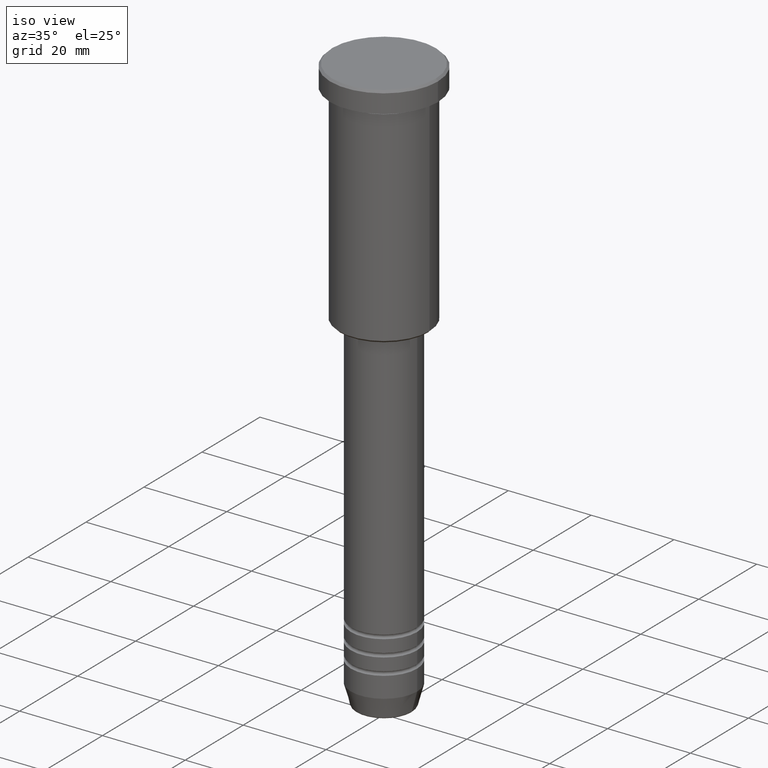
[diagram: clean part render]
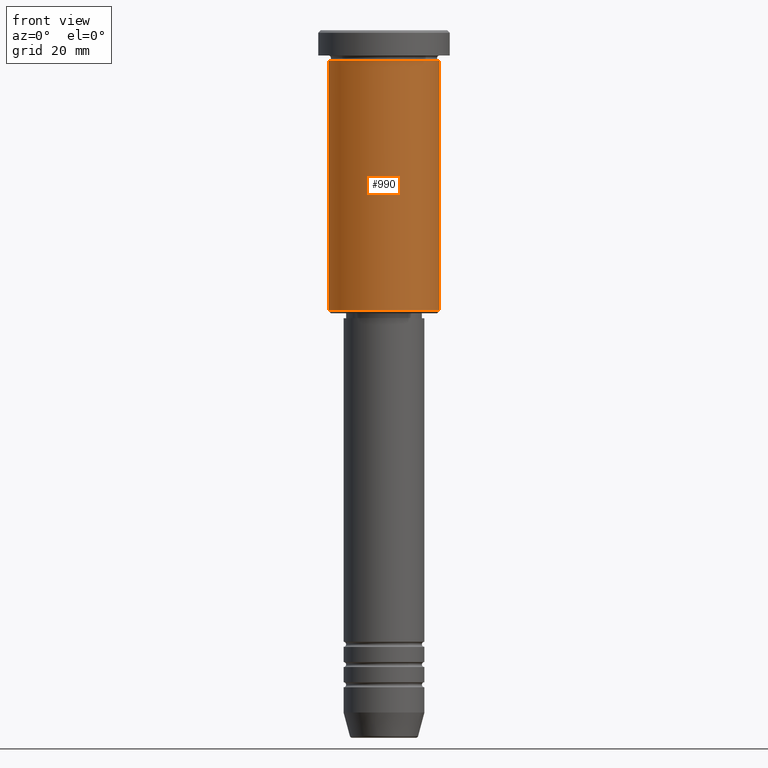
[diagram: tour spotlight — one face highlighted and labeled with its STEP entity id]
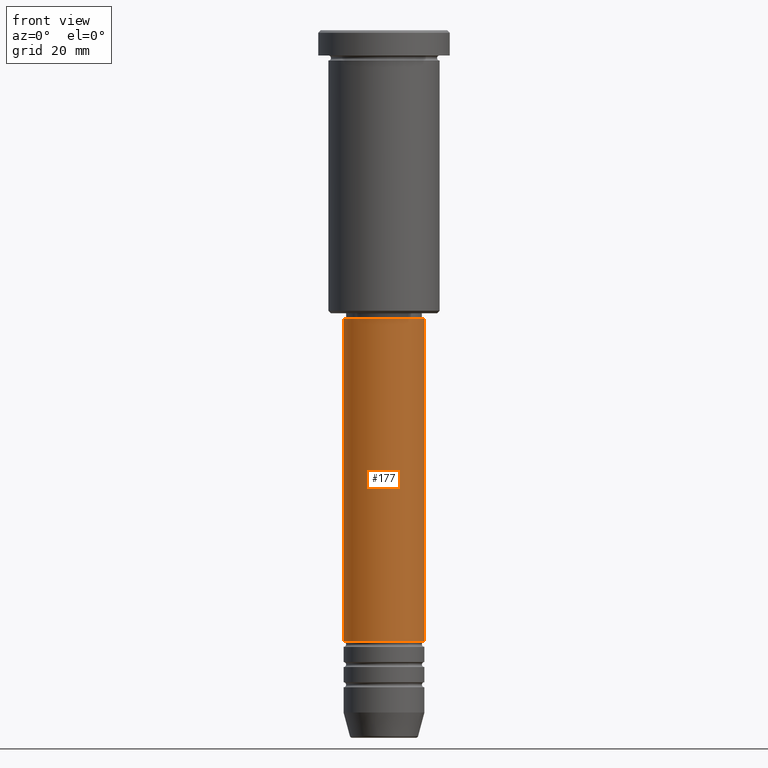
[diagram: tour spotlight — one face highlighted and labeled with its STEP entity id]
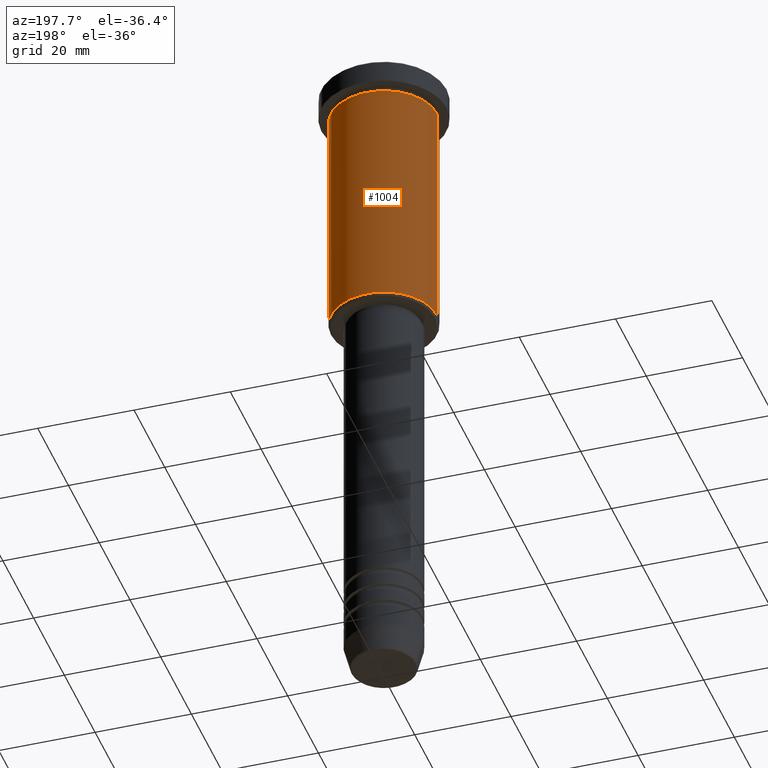
[diagram: tour spotlight — one face highlighted and labeled with its STEP entity id]
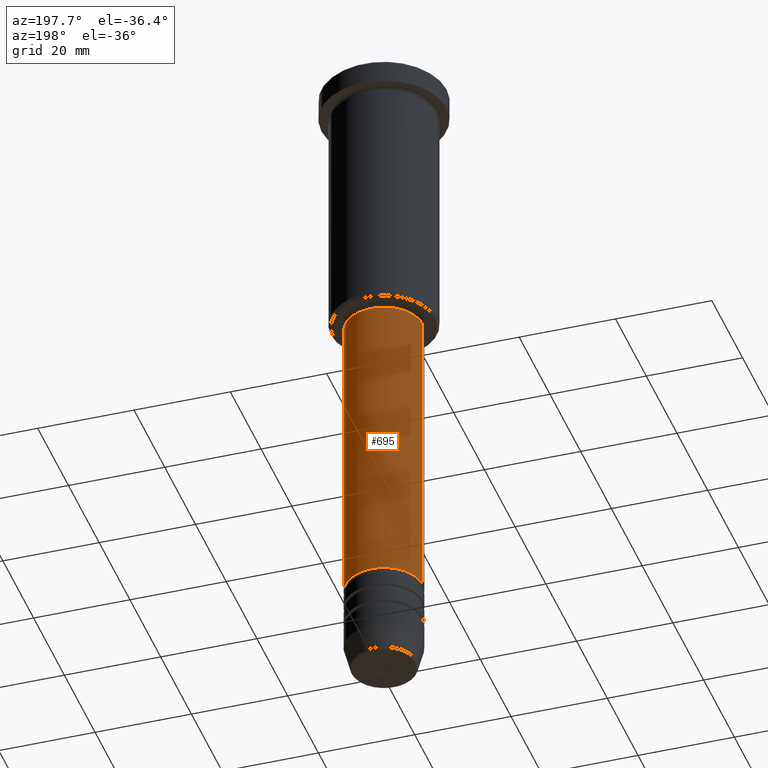
[diagram: tour spotlight — one face highlighted and labeled with its STEP entity id]
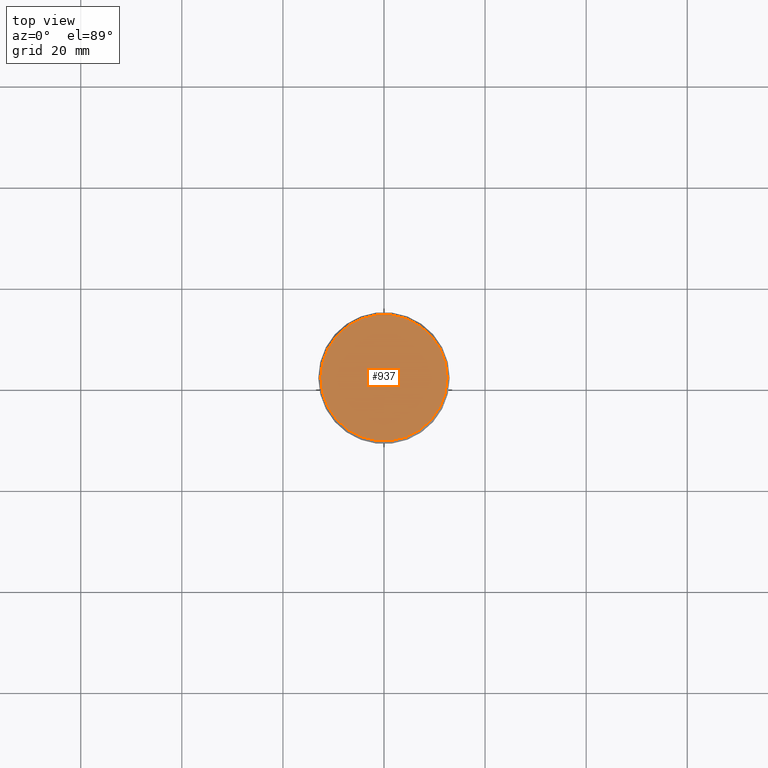
[diagram: tour spotlight — one face highlighted and labeled with its STEP entity id]
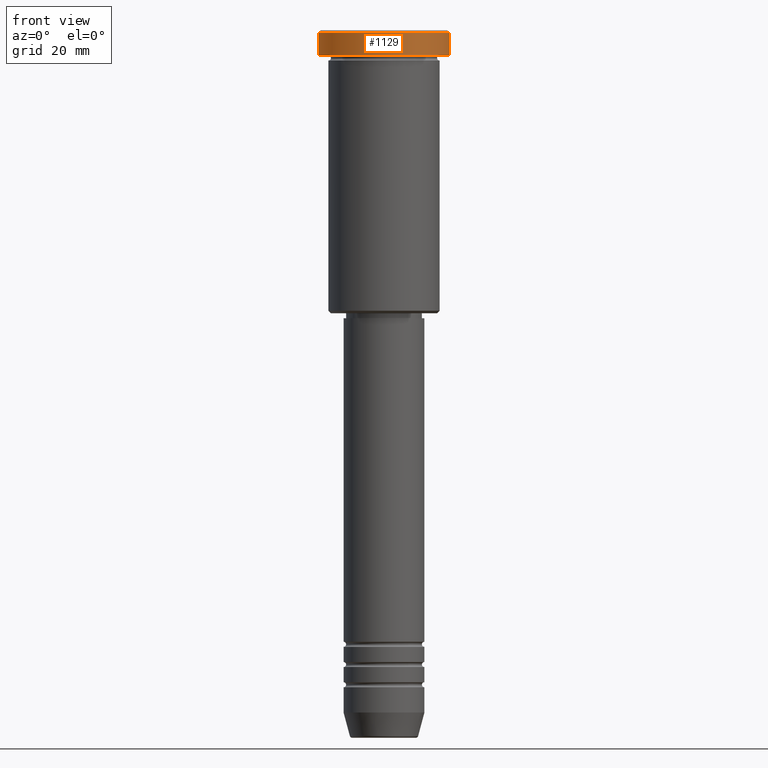
[diagram: tour spotlight — one face highlighted and labeled with its STEP entity id]
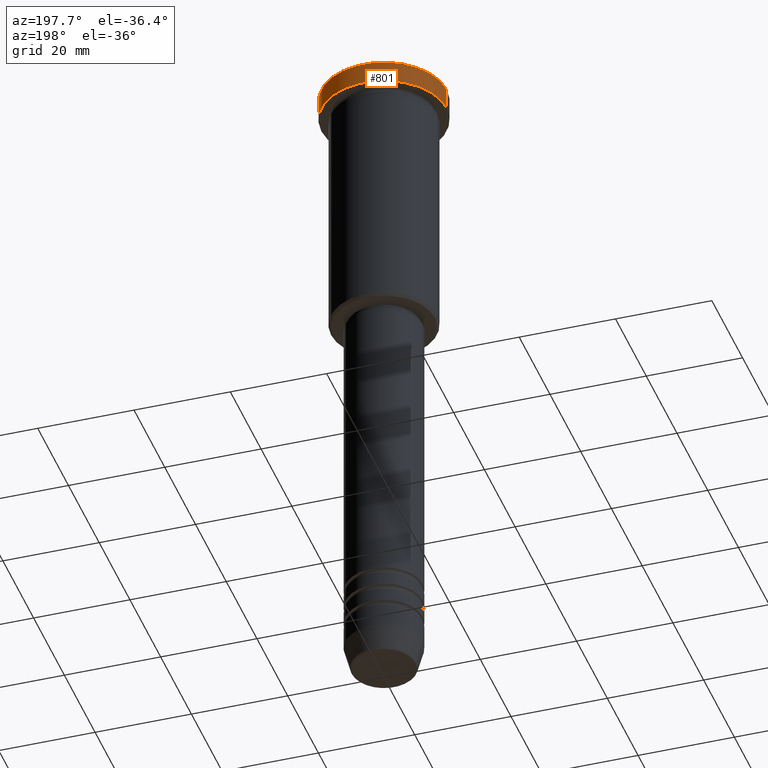
[diagram: tour spotlight — one face highlighted and labeled with its STEP entity id]
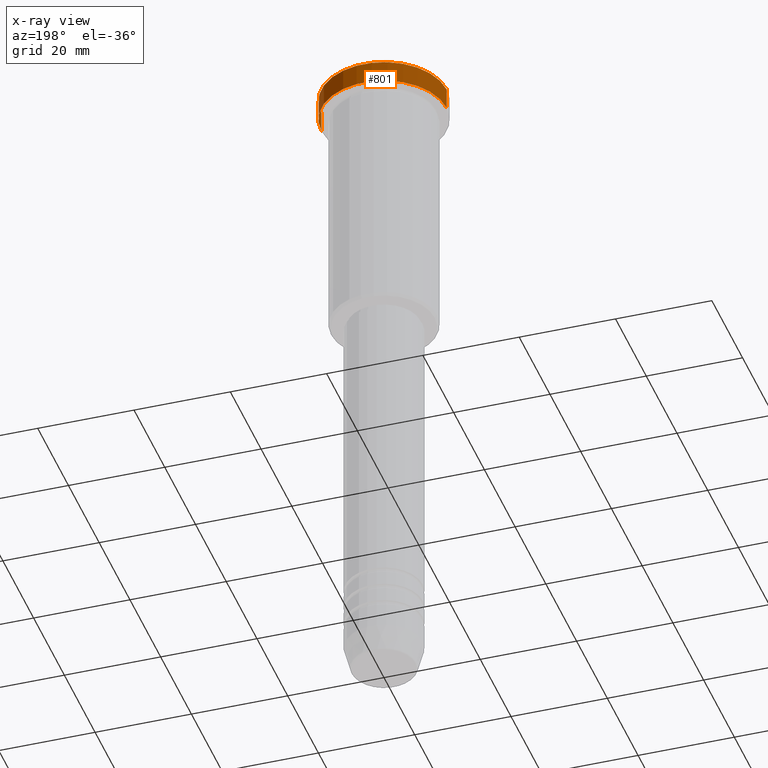
[diagram: x-ray of the same camera — body ghosted, this tour face saturated]
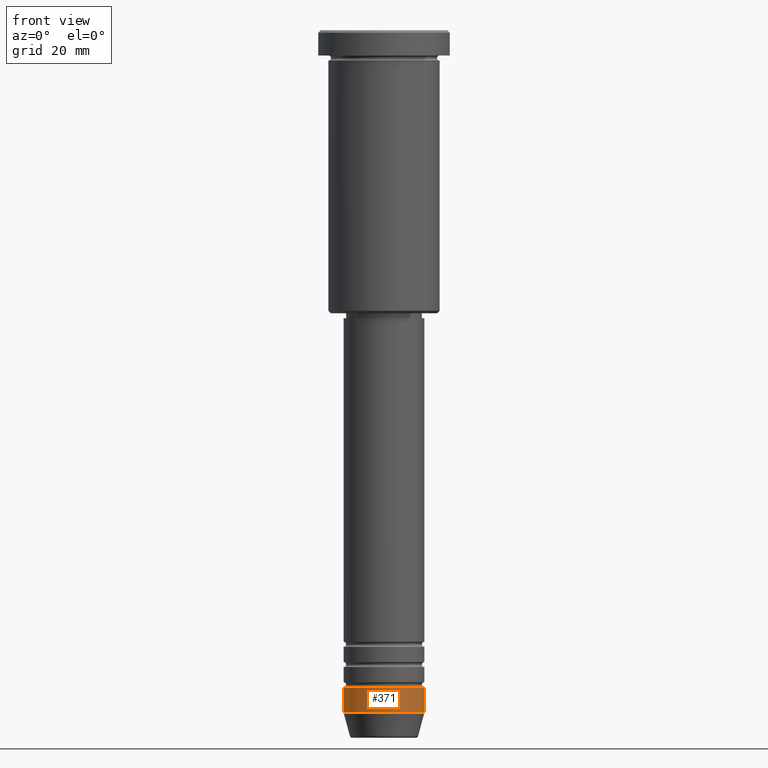
[diagram: tour spotlight — one face highlighted and labeled with its STEP entity id]
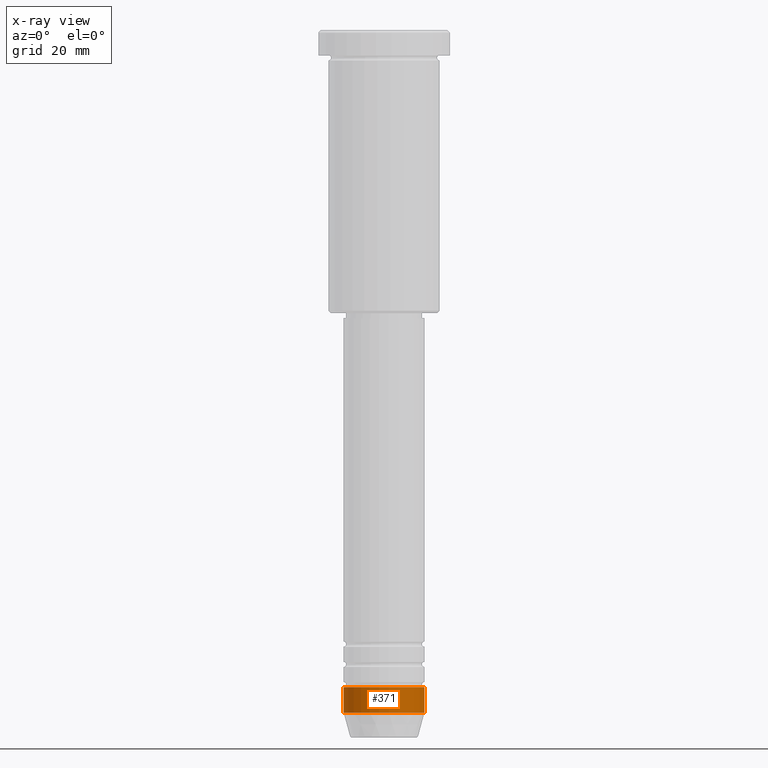
[diagram: x-ray of the same camera — body ghosted, this tour face saturated]
A machine part: a face-by-face anatomy tour. The part has 43 B-rep faces; the first image is the clean iso view, then the 8 largest visible faces are spotlighted one at a time (largest first), each with its STEP entity span.

Face 1 — front view, entity #990. In plain terms, the highlighted cylindrical surface (partial cylindrical patch) has radius 11 mm, axis along (-0, -0, 1).
Definition (entity closure, byte-faithful):
#57 = DIRECTION ( 'NONE',  ( -1.000000000000000000, 0.000000000000000000, 0.000000000000000000 ) ) ;
#84 = DIRECTION ( 'NONE',  ( 1.000000000000000000, 0.000000000000000000, 0.000000000000000000 ) ) ;
#114 = AXIS2_PLACEMENT_3D ( 'NONE', #369, #794, #84 ) ;
#122 = CARTESIAN_POINT ( 'NONE',  ( 11.00000000000000000, 0.000000000000000000, 0.000000000000000000 ) ) ;
#145 = ORIENTED_EDGE ( 'NONE', *, *, #610, .F. ) ;
#203 = CARTESIAN_POINT ( 'NONE',  ( 11.00000000000000000, 0.000000000000000000, -55.50000000000000711 ) ) ;
#283 = DIRECTION ( 'NONE',  ( 1.000000000000000000, 0.000000000000000000, 0.000000000000000000 ) ) ;
#284 = CARTESIAN_POINT ( 'NONE',  ( -11.00000000000000000, 1.347111479062088405E-15, -55.50000000000000711 ) ) ;
#309 = LINE ( 'NONE', #122, #1015 ) ;
#322 = VERTEX_POINT ( 'NONE', #424 ) ;
#338 = CARTESIAN_POINT ( 'NONE',  ( 0.000000000000000000, 0.000000000000000000, -55.50000000000000711 ) ) ;
#354 = EDGE_LOOP ( 'NONE', ( #145, #825, #763, #1108 ) ) ;
#369 = CARTESIAN_POINT ( 'NONE',  ( 0.000000000000000000, 0.000000000000000000, 0.000000000000000000 ) ) ;
#417 = VERTEX_POINT ( 'NONE', #832 ) ;
#424 = CARTESIAN_POINT ( 'NONE',  ( 11.00000000000000000, 0.000000000000000000, -5.999999999999999112 ) ) ;
#445 = DIRECTION ( 'NONE',  ( -0.000000000000000000, -0.000000000000000000, 1.000000000000000000 ) ) ;
#454 = EDGE_CURVE ( 'NONE', #1148, #322, #309, .T. ) ;
#558 = AXIS2_PLACEMENT_3D ( 'NONE', #338, #1070, #57 ) ;
#580 = DIRECTION ( 'NONE',  ( -0.000000000000000000, -0.000000000000000000, 1.000000000000000000 ) ) ;
#610 = EDGE_CURVE ( 'NONE', #1021, #417, #918, .T. ) ;
#627 = EDGE_CURVE ( 'NONE', #417, #322, #836, .T. ) ;
#638 = CARTESIAN_POINT ( 'NONE',  ( -11.00000000000000000, 1.347111479062088405E-15, 0.000000000000000000 ) ) ;
#659 = VECTOR ( 'NONE', #445, 1000.000000000000000 ) ;
#687 = DIRECTION ( 'NONE',  ( -0.000000000000000000, -0.000000000000000000, 1.000000000000000000 ) ) ;
#720 = CYLINDRICAL_SURFACE ( 'NONE', #114, 11.00000000000000000 ) ;
#763 = ORIENTED_EDGE ( 'NONE', *, *, #454, .T. ) ;
#784 = EDGE_CURVE ( 'NONE', #1021, #1148, #1063, .T. ) ;
#794 = DIRECTION ( 'NONE',  ( -0.000000000000000000, -0.000000000000000000, 1.000000000000000000 ) ) ;
#817 = CARTESIAN_POINT ( 'NONE',  ( 0.000000000000000000, 0.000000000000000000, -5.999999999999999112 ) ) ;
#825 = ORIENTED_EDGE ( 'NONE', *, *, #784, .T. ) ;
#832 = CARTESIAN_POINT ( 'NONE',  ( -11.00000000000000000, 1.347111479062088405E-15, -5.999999999999999112 ) ) ;
#836 = CIRCLE ( 'NONE', #1031, 11.00000000000000000 ) ;
#918 = LINE ( 'NONE', #638, #659 ) ;
#984 = FACE_OUTER_BOUND ( 'NONE', #354, .T. ) ;
#990 = ADVANCED_FACE ( 'NONE', ( #984 ), #720, .T. ) ;
#1015 = VECTOR ( 'NONE', #687, 1000.000000000000000 ) ;
#1021 = VERTEX_POINT ( 'NONE', #284 ) ;
#1031 = AXIS2_PLACEMENT_3D ( 'NONE', #817, #580, #283 ) ;
#1063 = CIRCLE ( 'NONE', #558, 11.00000000000000000 ) ;
#1070 = DIRECTION ( 'NONE',  ( -0.000000000000000000, -0.000000000000000000, 1.000000000000000000 ) ) ;
#1108 = ORIENTED_EDGE ( 'NONE', *, *, #627, .F. ) ;
#1148 = VERTEX_POINT ( 'NONE', #203 ) ;

Face 2 — front view, entity #177. In plain terms, the highlighted cylindrical surface (partial cylindrical patch) has radius 8 mm, axis along (-0, -0, 1).
Definition (entity closure, byte-faithful):
#36 = EDGE_CURVE ( 'NONE', #254, #66, #459, .T. ) ;
#56 = AXIS2_PLACEMENT_3D ( 'NONE', #422, #938, #390 ) ;
#66 = VERTEX_POINT ( 'NONE', #1183 ) ;
#110 = ORIENTED_EDGE ( 'NONE', *, *, #711, .T. ) ;
#142 = DIRECTION ( 'NONE',  ( -0.000000000000000000, -0.000000000000000000, 1.000000000000000000 ) ) ;
#162 = VERTEX_POINT ( 'NONE', #767 ) ;
#177 = ADVANCED_FACE ( 'NONE', ( #421 ), #520, .T. ) ;
#186 = DIRECTION ( 'NONE',  ( -0.000000000000000000, -0.000000000000000000, 1.000000000000000000 ) ) ;
#200 = CARTESIAN_POINT ( 'NONE',  ( 8.000000000000000000, 0.000000000000000000, 0.000000000000000000 ) ) ;
#204 = ORIENTED_EDGE ( 'NONE', *, *, #490, .T. ) ;
#207 = ORIENTED_EDGE ( 'NONE', *, *, #887, .F. ) ;
#233 = CARTESIAN_POINT ( 'NONE',  ( 8.000000000000000000, 0.000000000000000000, -57.00000000000002842 ) ) ;
#254 = VERTEX_POINT ( 'NONE', #831 ) ;
#390 = DIRECTION ( 'NONE',  ( 1.000000000000000000, 0.000000000000000000, 0.000000000000000000 ) ) ;
#421 = FACE_OUTER_BOUND ( 'NONE', #806, .T. ) ;
#422 = CARTESIAN_POINT ( 'NONE',  ( 0.000000000000000000, 0.000000000000000000, -121.0000000000000000 ) ) ;
#431 = DIRECTION ( 'NONE',  ( -0.000000000000000000, -0.000000000000000000, 1.000000000000000000 ) ) ;
#435 = VERTEX_POINT ( 'NONE', #233 ) ;
#459 = LINE ( 'NONE', #999, #560 ) ;
#490 = EDGE_CURVE ( 'NONE', #254, #162, #1085, .T. ) ;
#493 = AXIS2_PLACEMENT_3D ( 'NONE', #707, #607, #1061 ) ;
#520 = CYLINDRICAL_SURFACE ( 'NONE', #493, 8.000000000000000000 ) ;
#556 = ORIENTED_EDGE ( 'NONE', *, *, #36, .F. ) ;
#560 = VECTOR ( 'NONE', #186, 1000.000000000000000 ) ;
#607 = DIRECTION ( 'NONE',  ( -0.000000000000000000, -0.000000000000000000, 1.000000000000000000 ) ) ;
#626 = CARTESIAN_POINT ( 'NONE',  ( 0.000000000000000000, 0.000000000000000000, -57.00000000000002842 ) ) ;
#707 = CARTESIAN_POINT ( 'NONE',  ( 0.000000000000000000, 0.000000000000000000, 0.000000000000000000 ) ) ;
#711 = EDGE_CURVE ( 'NONE', #162, #435, #739, .T. ) ;
#739 = LINE ( 'NONE', #200, #1156 ) ;
#767 = CARTESIAN_POINT ( 'NONE',  ( 8.000000000000000000, 0.000000000000000000, -121.0000000000000000 ) ) ;
#798 = DIRECTION ( 'NONE',  ( 1.000000000000000000, 0.000000000000000000, 0.000000000000000000 ) ) ;
#806 = EDGE_LOOP ( 'NONE', ( #556, #204, #110, #207 ) ) ;
#831 = CARTESIAN_POINT ( 'NONE',  ( -8.000000000000000000, 9.797174393178825657E-16, -121.0000000000000000 ) ) ;
#887 = EDGE_CURVE ( 'NONE', #66, #435, #1123, .T. ) ;
#938 = DIRECTION ( 'NONE',  ( -0.000000000000000000, -0.000000000000000000, 1.000000000000000000 ) ) ;
#999 = CARTESIAN_POINT ( 'NONE',  ( -8.000000000000000000, 9.797174393178825657E-16, 0.000000000000000000 ) ) ;
#1013 = AXIS2_PLACEMENT_3D ( 'NONE', #626, #431, #798 ) ;
#1061 = DIRECTION ( 'NONE',  ( 1.000000000000000000, 0.000000000000000000, 0.000000000000000000 ) ) ;
#1085 = CIRCLE ( 'NONE', #56, 8.000000000000000000 ) ;
#1123 = CIRCLE ( 'NONE', #1013, 8.000000000000000000 ) ;
#1156 = VECTOR ( 'NONE', #142, 1000.000000000000000 ) ;
#1183 = CARTESIAN_POINT ( 'NONE',  ( -8.000000000000000000, 9.797174393178825657E-16, -57.00000000000002842 ) ) ;

Face 3 — auxiliary view, entity #1004. In plain terms, the highlighted cylindrical surface (partial cylindrical patch) has radius 11 mm, axis along (-0, -0, 1).
Definition (entity closure, byte-faithful):
#59 = DIRECTION ( 'NONE',  ( -1.000000000000000000, 0.000000000000000000, 0.000000000000000000 ) ) ;
#60 = ORIENTED_EDGE ( 'NONE', *, *, #610, .T. ) ;
#119 = EDGE_LOOP ( 'NONE', ( #462, #60, #608, #597 ) ) ;
#122 = CARTESIAN_POINT ( 'NONE',  ( 11.00000000000000000, 0.000000000000000000, 0.000000000000000000 ) ) ;
#125 = DIRECTION ( 'NONE',  ( 1.000000000000000000, 0.000000000000000000, 0.000000000000000000 ) ) ;
#179 = EDGE_CURVE ( 'NONE', #1148, #1021, #1158, .T. ) ;
#203 = CARTESIAN_POINT ( 'NONE',  ( 11.00000000000000000, 0.000000000000000000, -55.50000000000000711 ) ) ;
#220 = AXIS2_PLACEMENT_3D ( 'NONE', #750, #1028, #125 ) ;
#284 = CARTESIAN_POINT ( 'NONE',  ( -11.00000000000000000, 1.347111479062088405E-15, -55.50000000000000711 ) ) ;
#290 = AXIS2_PLACEMENT_3D ( 'NONE', #722, #919, #1095 ) ;
#309 = LINE ( 'NONE', #122, #1015 ) ;
#322 = VERTEX_POINT ( 'NONE', #424 ) ;
#417 = VERTEX_POINT ( 'NONE', #832 ) ;
#424 = CARTESIAN_POINT ( 'NONE',  ( 11.00000000000000000, 0.000000000000000000, -5.999999999999999112 ) ) ;
#436 = FACE_OUTER_BOUND ( 'NONE', #119, .T. ) ;
#445 = DIRECTION ( 'NONE',  ( -0.000000000000000000, -0.000000000000000000, 1.000000000000000000 ) ) ;
#454 = EDGE_CURVE ( 'NONE', #1148, #322, #309, .T. ) ;
#462 = ORIENTED_EDGE ( 'NONE', *, *, #179, .T. ) ;
#505 = EDGE_CURVE ( 'NONE', #322, #417, #732, .T. ) ;
#597 = ORIENTED_EDGE ( 'NONE', *, *, #454, .F. ) ;
#608 = ORIENTED_EDGE ( 'NONE', *, *, #505, .F. ) ;
#610 = EDGE_CURVE ( 'NONE', #1021, #417, #918, .T. ) ;
#630 = CYLINDRICAL_SURFACE ( 'NONE', #290, 11.00000000000000000 ) ;
#638 = CARTESIAN_POINT ( 'NONE',  ( -11.00000000000000000, 1.347111479062088405E-15, 0.000000000000000000 ) ) ;
#657 = AXIS2_PLACEMENT_3D ( 'NONE', #868, #888, #59 ) ;
#659 = VECTOR ( 'NONE', #445, 1000.000000000000000 ) ;
#687 = DIRECTION ( 'NONE',  ( -0.000000000000000000, -0.000000000000000000, 1.000000000000000000 ) ) ;
#722 = CARTESIAN_POINT ( 'NONE',  ( 0.000000000000000000, 0.000000000000000000, 0.000000000000000000 ) ) ;
#732 = CIRCLE ( 'NONE', #220, 11.00000000000000000 ) ;
#750 = CARTESIAN_POINT ( 'NONE',  ( 0.000000000000000000, 0.000000000000000000, -5.999999999999999112 ) ) ;
#832 = CARTESIAN_POINT ( 'NONE',  ( -11.00000000000000000, 1.347111479062088405E-15, -5.999999999999999112 ) ) ;
#868 = CARTESIAN_POINT ( 'NONE',  ( 0.000000000000000000, 0.000000000000000000, -55.50000000000000711 ) ) ;
#888 = DIRECTION ( 'NONE',  ( -0.000000000000000000, -0.000000000000000000, 1.000000000000000000 ) ) ;
#918 = LINE ( 'NONE', #638, #659 ) ;
#919 = DIRECTION ( 'NONE',  ( -0.000000000000000000, -0.000000000000000000, 1.000000000000000000 ) ) ;
#1004 = ADVANCED_FACE ( 'NONE', ( #436 ), #630, .T. ) ;
#1015 = VECTOR ( 'NONE', #687, 1000.000000000000000 ) ;
#1021 = VERTEX_POINT ( 'NONE', #284 ) ;
#1028 = DIRECTION ( 'NONE',  ( -0.000000000000000000, -0.000000000000000000, 1.000000000000000000 ) ) ;
#1095 = DIRECTION ( 'NONE',  ( 1.000000000000000000, 0.000000000000000000, 0.000000000000000000 ) ) ;
#1148 = VERTEX_POINT ( 'NONE', #203 ) ;
#1158 = CIRCLE ( 'NONE', #657, 11.00000000000000000 ) ;

Face 4 — auxiliary view, entity #695. In plain terms, the highlighted cylindrical surface (partial cylindrical patch) has radius 8 mm, axis along (-0, -0, 1).
Definition (entity closure, byte-faithful):
#6 = DIRECTION ( 'NONE',  ( 1.000000000000000000, 0.000000000000000000, 0.000000000000000000 ) ) ;
#20 = CARTESIAN_POINT ( 'NONE',  ( 0.000000000000000000, 0.000000000000000000, -57.00000000000002842 ) ) ;
#36 = EDGE_CURVE ( 'NONE', #254, #66, #459, .T. ) ;
#66 = VERTEX_POINT ( 'NONE', #1183 ) ;
#88 = CARTESIAN_POINT ( 'NONE',  ( 0.000000000000000000, 0.000000000000000000, -121.0000000000000000 ) ) ;
#102 = EDGE_CURVE ( 'NONE', #435, #66, #218, .T. ) ;
#142 = DIRECTION ( 'NONE',  ( -0.000000000000000000, -0.000000000000000000, 1.000000000000000000 ) ) ;
#162 = VERTEX_POINT ( 'NONE', #767 ) ;
#186 = DIRECTION ( 'NONE',  ( -0.000000000000000000, -0.000000000000000000, 1.000000000000000000 ) ) ;
#188 = FACE_OUTER_BOUND ( 'NONE', #975, .T. ) ;
#200 = CARTESIAN_POINT ( 'NONE',  ( 8.000000000000000000, 0.000000000000000000, 0.000000000000000000 ) ) ;
#218 = CIRCLE ( 'NONE', #992, 8.000000000000000000 ) ;
#233 = CARTESIAN_POINT ( 'NONE',  ( 8.000000000000000000, 0.000000000000000000, -57.00000000000002842 ) ) ;
#242 = ORIENTED_EDGE ( 'NONE', *, *, #711, .F. ) ;
#254 = VERTEX_POINT ( 'NONE', #831 ) ;
#297 = CYLINDRICAL_SURFACE ( 'NONE', #471, 8.000000000000000000 ) ;
#386 = EDGE_CURVE ( 'NONE', #162, #254, #699, .T. ) ;
#416 = AXIS2_PLACEMENT_3D ( 'NONE', #88, #1000, #932 ) ;
#435 = VERTEX_POINT ( 'NONE', #233 ) ;
#459 = LINE ( 'NONE', #999, #560 ) ;
#471 = AXIS2_PLACEMENT_3D ( 'NONE', #559, #822, #6 ) ;
#533 = ORIENTED_EDGE ( 'NONE', *, *, #36, .T. ) ;
#559 = CARTESIAN_POINT ( 'NONE',  ( 0.000000000000000000, 0.000000000000000000, 0.000000000000000000 ) ) ;
#560 = VECTOR ( 'NONE', #186, 1000.000000000000000 ) ;
#695 = ADVANCED_FACE ( 'NONE', ( #188 ), #297, .T. ) ;
#699 = CIRCLE ( 'NONE', #416, 8.000000000000000000 ) ;
#711 = EDGE_CURVE ( 'NONE', #162, #435, #739, .T. ) ;
#739 = LINE ( 'NONE', #200, #1156 ) ;
#767 = CARTESIAN_POINT ( 'NONE',  ( 8.000000000000000000, 0.000000000000000000, -121.0000000000000000 ) ) ;
#774 = ORIENTED_EDGE ( 'NONE', *, *, #102, .F. ) ;
#822 = DIRECTION ( 'NONE',  ( -0.000000000000000000, -0.000000000000000000, 1.000000000000000000 ) ) ;
#829 = DIRECTION ( 'NONE',  ( 1.000000000000000000, 0.000000000000000000, 0.000000000000000000 ) ) ;
#831 = CARTESIAN_POINT ( 'NONE',  ( -8.000000000000000000, 9.797174393178825657E-16, -121.0000000000000000 ) ) ;
#932 = DIRECTION ( 'NONE',  ( 1.000000000000000000, 0.000000000000000000, 0.000000000000000000 ) ) ;
#954 = DIRECTION ( 'NONE',  ( -0.000000000000000000, -0.000000000000000000, 1.000000000000000000 ) ) ;
#975 = EDGE_LOOP ( 'NONE', ( #1082, #533, #774, #242 ) ) ;
#992 = AXIS2_PLACEMENT_3D ( 'NONE', #20, #954, #829 ) ;
#999 = CARTESIAN_POINT ( 'NONE',  ( -8.000000000000000000, 9.797174393178825657E-16, 0.000000000000000000 ) ) ;
#1000 = DIRECTION ( 'NONE',  ( -0.000000000000000000, -0.000000000000000000, 1.000000000000000000 ) ) ;
#1082 = ORIENTED_EDGE ( 'NONE', *, *, #386, .T. ) ;
#1156 = VECTOR ( 'NONE', #142, 1000.000000000000000 ) ;
#1183 = CARTESIAN_POINT ( 'NONE',  ( -8.000000000000000000, 9.797174393178825657E-16, -57.00000000000002842 ) ) ;

Face 5 — top view, entity #937. In plain terms, the highlighted planar face has unit normal (0, -0, 1).
Definition (entity closure, byte-faithful):
#68 = AXIS2_PLACEMENT_3D ( 'NONE', #761, #593, #693 ) ;
#155 = CARTESIAN_POINT ( 'NONE',  ( 0.000000000000000000, 0.000000000000000000, 0.000000000000000000 ) ) ;
#289 = AXIS2_PLACEMENT_3D ( 'NONE', #155, #519, #569 ) ;
#302 = DIRECTION ( 'NONE',  ( 0.000000000000000000, -0.000000000000000000, 1.000000000000000000 ) ) ;
#312 = AXIS2_PLACEMENT_3D ( 'NONE', #1113, #302, #844 ) ;
#326 = FACE_OUTER_BOUND ( 'NONE', #1097, .T. ) ;
#373 = CARTESIAN_POINT ( 'NONE',  ( 12.50000000000001066, 1.561424668912876097E-15, 0.000000000000000000 ) ) ;
#381 = VERTEX_POINT ( 'NONE', #873 ) ;
#496 = CIRCLE ( 'NONE', #289, 12.50000000000001066 ) ;
#519 = DIRECTION ( 'NONE',  ( -0.000000000000000000, -0.000000000000000000, 1.000000000000000000 ) ) ;
#569 = DIRECTION ( 'NONE',  ( 1.000000000000000000, 0.000000000000000000, 0.000000000000000000 ) ) ;
#593 = DIRECTION ( 'NONE',  ( -0.000000000000000000, -0.000000000000000000, 1.000000000000000000 ) ) ;
#601 = CIRCLE ( 'NONE', #68, 12.50000000000001066 ) ;
#613 = EDGE_CURVE ( 'NONE', #381, #703, #496, .T. ) ;
#693 = DIRECTION ( 'NONE',  ( 1.000000000000000000, 0.000000000000000000, 0.000000000000000000 ) ) ;
#703 = VERTEX_POINT ( 'NONE', #373 ) ;
#748 = PLANE ( 'NONE',  #312 ) ;
#761 = CARTESIAN_POINT ( 'NONE',  ( 0.000000000000000000, 0.000000000000000000, 0.000000000000000000 ) ) ;
#826 = EDGE_CURVE ( 'NONE', #703, #381, #601, .T. ) ;
#844 = DIRECTION ( 'NONE',  ( 1.000000000000000000, 0.000000000000000000, 0.000000000000000000 ) ) ;
#873 = CARTESIAN_POINT ( 'NONE',  ( -12.50000000000001066, 0.000000000000000000, 0.000000000000000000 ) ) ;
#891 = ORIENTED_EDGE ( 'NONE', *, *, #613, .T. ) ;
#917 = ORIENTED_EDGE ( 'NONE', *, *, #826, .T. ) ;
#937 = ADVANCED_FACE ( 'NONE', ( #326 ), #748, .T. ) ;
#1097 = EDGE_LOOP ( 'NONE', ( #891, #917 ) ) ;
#1113 = CARTESIAN_POINT ( 'NONE',  ( 0.000000000000000000, 0.000000000000000000, 0.000000000000000000 ) ) ;

Face 6 — front view, entity #1129. In plain terms, the highlighted cylindrical surface (partial cylindrical patch) has radius 13 mm, axis along (-0, -0, 1).
Definition (entity closure, byte-faithful):
#2 = VERTEX_POINT ( 'NONE', #649 ) ;
#92 = DIRECTION ( 'NONE',  ( 1.000000000000000000, 0.000000000000000000, 0.000000000000000000 ) ) ;
#109 = DIRECTION ( 'NONE',  ( 1.000000000000000000, 0.000000000000000000, 0.000000000000000000 ) ) ;
#128 = DIRECTION ( 'NONE',  ( 1.000000000000000000, 0.000000000000000000, 0.000000000000000000 ) ) ;
#172 = VECTOR ( 'NONE', #265, 1000.000000000000000 ) ;
#191 = LINE ( 'NONE', #439, #474 ) ;
#252 = EDGE_CURVE ( 'NONE', #874, #2, #191, .T. ) ;
#265 = DIRECTION ( 'NONE',  ( -0.000000000000000000, -0.000000000000000000, 1.000000000000000000 ) ) ;
#333 = DIRECTION ( 'NONE',  ( -0.000000000000000000, -0.000000000000000000, 1.000000000000000000 ) ) ;
#347 = CARTESIAN_POINT ( 'NONE',  ( 13.00000000000000000, 0.000000000000000000, -5.000000000000000000 ) ) ;
#385 = VERTEX_POINT ( 'NONE', #461 ) ;
#439 = CARTESIAN_POINT ( 'NONE',  ( 13.00000000000000000, 0.000000000000000000, 0.000000000000000000 ) ) ;
#448 = ORIENTED_EDGE ( 'NONE', *, *, #572, .T. ) ;
#458 = DIRECTION ( 'NONE',  ( -0.000000000000000000, -0.000000000000000000, 1.000000000000000000 ) ) ;
#461 = CARTESIAN_POINT ( 'NONE',  ( -13.00000000000000000, 1.592040838891559095E-15, -5.000000000000000000 ) ) ;
#467 = DIRECTION ( 'NONE',  ( -0.000000000000000000, -0.000000000000000000, 1.000000000000000000 ) ) ;
#470 = ORIENTED_EDGE ( 'NONE', *, *, #252, .T. ) ;
#473 = CARTESIAN_POINT ( 'NONE',  ( -13.00000000000000000, 1.592040838891559095E-15, -0.4999999999999935052 ) ) ;
#474 = VECTOR ( 'NONE', #467, 1000.000000000000000 ) ;
#555 = CARTESIAN_POINT ( 'NONE',  ( 0.000000000000000000, 0.000000000000000000, 0.000000000000000000 ) ) ;
#572 = EDGE_CURVE ( 'NONE', #385, #874, #1050, .T. ) ;
#589 = CARTESIAN_POINT ( 'NONE',  ( 0.000000000000000000, 0.000000000000000000, -5.000000000000000000 ) ) ;
#605 = AXIS2_PLACEMENT_3D ( 'NONE', #589, #333, #128 ) ;
#633 = CARTESIAN_POINT ( 'NONE',  ( 0.000000000000000000, 0.000000000000000000, -0.4999999999999935052 ) ) ;
#649 = CARTESIAN_POINT ( 'NONE',  ( 13.00000000000000000, 0.000000000000000000, -0.4999999999999935052 ) ) ;
#675 = AXIS2_PLACEMENT_3D ( 'NONE', #555, #458, #92 ) ;
#700 = LINE ( 'NONE', #872, #172 ) ;
#757 = EDGE_CURVE ( 'NONE', #2, #770, #775, .T. ) ;
#758 = ORIENTED_EDGE ( 'NONE', *, *, #886, .F. ) ;
#770 = VERTEX_POINT ( 'NONE', #473 ) ;
#775 = CIRCLE ( 'NONE', #1109, 13.00000000000000000 ) ;
#872 = CARTESIAN_POINT ( 'NONE',  ( -13.00000000000000000, 1.592040838891559095E-15, 0.000000000000000000 ) ) ;
#874 = VERTEX_POINT ( 'NONE', #347 ) ;
#886 = EDGE_CURVE ( 'NONE', #385, #770, #700, .T. ) ;
#909 = FACE_OUTER_BOUND ( 'NONE', #1152, .T. ) ;
#1005 = ORIENTED_EDGE ( 'NONE', *, *, #757, .T. ) ;
#1050 = CIRCLE ( 'NONE', #605, 13.00000000000000000 ) ;
#1088 = DIRECTION ( 'NONE',  ( 0.000000000000000000, 0.000000000000000000, -1.000000000000000000 ) ) ;
#1109 = AXIS2_PLACEMENT_3D ( 'NONE', #633, #1088, #109 ) ;
#1129 = ADVANCED_FACE ( 'NONE', ( #909 ), #1181, .T. ) ;
#1152 = EDGE_LOOP ( 'NONE', ( #758, #448, #470, #1005 ) ) ;
#1181 = CYLINDRICAL_SURFACE ( 'NONE', #675, 13.00000000000000000 ) ;

Face 7 — auxiliary view, entity #801. An x-ray twin of the same camera follows (body ghosted, this face saturated) — the face is partly hidden behind the body. In plain terms, the highlighted cylindrical surface (partial cylindrical patch) has radius 13 mm, axis along (-0, -0, 1).
Definition (entity closure, byte-faithful):
#2 = VERTEX_POINT ( 'NONE', #649 ) ;
#21 = ORIENTED_EDGE ( 'NONE', *, *, #625, .T. ) ;
#124 = ORIENTED_EDGE ( 'NONE', *, *, #886, .T. ) ;
#130 = DIRECTION ( 'NONE',  ( 1.000000000000000000, 0.000000000000000000, 0.000000000000000000 ) ) ;
#141 = ORIENTED_EDGE ( 'NONE', *, *, #252, .F. ) ;
#157 = FACE_OUTER_BOUND ( 'NONE', #752, .T. ) ;
#172 = VECTOR ( 'NONE', #265, 1000.000000000000000 ) ;
#191 = LINE ( 'NONE', #439, #474 ) ;
#231 = CARTESIAN_POINT ( 'NONE',  ( 0.000000000000000000, 0.000000000000000000, -5.000000000000000000 ) ) ;
#252 = EDGE_CURVE ( 'NONE', #874, #2, #191, .T. ) ;
#263 = DIRECTION ( 'NONE',  ( -0.000000000000000000, -0.000000000000000000, 1.000000000000000000 ) ) ;
#265 = DIRECTION ( 'NONE',  ( -0.000000000000000000, -0.000000000000000000, 1.000000000000000000 ) ) ;
#266 = CYLINDRICAL_SURFACE ( 'NONE', #578, 13.00000000000000000 ) ;
#285 = EDGE_CURVE ( 'NONE', #874, #385, #744, .T. ) ;
#298 = DIRECTION ( 'NONE',  ( 0.000000000000000000, 0.000000000000000000, -1.000000000000000000 ) ) ;
#316 = DIRECTION ( 'NONE',  ( -0.000000000000000000, -0.000000000000000000, 1.000000000000000000 ) ) ;
#347 = CARTESIAN_POINT ( 'NONE',  ( 13.00000000000000000, 0.000000000000000000, -5.000000000000000000 ) ) ;
#380 = AXIS2_PLACEMENT_3D ( 'NONE', #231, #316, #1038 ) ;
#385 = VERTEX_POINT ( 'NONE', #461 ) ;
#439 = CARTESIAN_POINT ( 'NONE',  ( 13.00000000000000000, 0.000000000000000000, 0.000000000000000000 ) ) ;
#461 = CARTESIAN_POINT ( 'NONE',  ( -13.00000000000000000, 1.592040838891559095E-15, -5.000000000000000000 ) ) ;
#467 = DIRECTION ( 'NONE',  ( -0.000000000000000000, -0.000000000000000000, 1.000000000000000000 ) ) ;
#473 = CARTESIAN_POINT ( 'NONE',  ( -13.00000000000000000, 1.592040838891559095E-15, -0.4999999999999935052 ) ) ;
#474 = VECTOR ( 'NONE', #467, 1000.000000000000000 ) ;
#480 = CARTESIAN_POINT ( 'NONE',  ( 0.000000000000000000, 0.000000000000000000, -0.4999999999999935052 ) ) ;
#578 = AXIS2_PLACEMENT_3D ( 'NONE', #902, #263, #130 ) ;
#625 = EDGE_CURVE ( 'NONE', #770, #2, #730, .T. ) ;
#649 = CARTESIAN_POINT ( 'NONE',  ( 13.00000000000000000, 0.000000000000000000, -0.4999999999999935052 ) ) ;
#654 = AXIS2_PLACEMENT_3D ( 'NONE', #480, #298, #1114 ) ;
#700 = LINE ( 'NONE', #872, #172 ) ;
#730 = CIRCLE ( 'NONE', #654, 13.00000000000000000 ) ;
#744 = CIRCLE ( 'NONE', #380, 13.00000000000000000 ) ;
#752 = EDGE_LOOP ( 'NONE', ( #935, #124, #21, #141 ) ) ;
#770 = VERTEX_POINT ( 'NONE', #473 ) ;
#801 = ADVANCED_FACE ( 'NONE', ( #157 ), #266, .T. ) ;
#872 = CARTESIAN_POINT ( 'NONE',  ( -13.00000000000000000, 1.592040838891559095E-15, 0.000000000000000000 ) ) ;
#874 = VERTEX_POINT ( 'NONE', #347 ) ;
#886 = EDGE_CURVE ( 'NONE', #385, #770, #700, .T. ) ;
#902 = CARTESIAN_POINT ( 'NONE',  ( 0.000000000000000000, 0.000000000000000000, 0.000000000000000000 ) ) ;
#935 = ORIENTED_EDGE ( 'NONE', *, *, #285, .T. ) ;
#1038 = DIRECTION ( 'NONE',  ( 1.000000000000000000, 0.000000000000000000, 0.000000000000000000 ) ) ;
#1114 = DIRECTION ( 'NONE',  ( 1.000000000000000000, 0.000000000000000000, 0.000000000000000000 ) ) ;

Face 8 — front view, entity #371. An x-ray twin of the same camera follows (body ghosted, this face saturated) — the face is partly hidden behind the body. In plain terms, the highlighted cylindrical surface (partial cylindrical patch) has radius 8 mm, axis along (-0, -0, 1).
Definition (entity closure, byte-faithful):
#1 = CARTESIAN_POINT ( 'NONE',  ( -8.000000000000000000, 9.797174393178825657E-16, -130.0000000000000000 ) ) ;
#17 = VECTOR ( 'NONE', #642, 1000.000000000000000 ) ;
#28 = VERTEX_POINT ( 'NONE', #276 ) ;
#91 = LINE ( 'NONE', #1180, #875 ) ;
#212 = DIRECTION ( 'NONE',  ( -0.000000000000000000, -0.000000000000000000, 1.000000000000000000 ) ) ;
#229 = VERTEX_POINT ( 'NONE', #639 ) ;
#250 = DIRECTION ( 'NONE',  ( 1.000000000000000000, 0.000000000000000000, 0.000000000000000000 ) ) ;
#275 = LINE ( 'NONE', #893, #17 ) ;
#276 = CARTESIAN_POINT ( 'NONE',  ( 8.000000000000000000, 0.000000000000000000, -135.0000000000000000 ) ) ;
#305 = EDGE_CURVE ( 'NONE', #1093, #28, #1142, .T. ) ;
#327 = DIRECTION ( 'NONE',  ( 1.000000000000000000, 0.000000000000000000, 0.000000000000000000 ) ) ;
#348 = AXIS2_PLACEMENT_3D ( 'NONE', #586, #1127, #765 ) ;
#356 = CARTESIAN_POINT ( 'NONE',  ( -8.000000000000000000, 9.797174393178825657E-16, -135.0000000000000000 ) ) ;
#371 = ADVANCED_FACE ( 'NONE', ( #896 ), #1139, .T. ) ;
#408 = CARTESIAN_POINT ( 'NONE',  ( 0.000000000000000000, 0.000000000000000000, -135.0000000000000000 ) ) ;
#412 = CARTESIAN_POINT ( 'NONE',  ( 0.000000000000000000, 0.000000000000000000, 0.000000000000000000 ) ) ;
#425 = ORIENTED_EDGE ( 'NONE', *, *, #305, .T. ) ;
#463 = DIRECTION ( 'NONE',  ( -0.000000000000000000, -0.000000000000000000, 1.000000000000000000 ) ) ;
#487 = EDGE_CURVE ( 'NONE', #528, #229, #1017, .T. ) ;
#528 = VERTEX_POINT ( 'NONE', #1 ) ;
#586 = CARTESIAN_POINT ( 'NONE',  ( 0.000000000000000000, 0.000000000000000000, -130.0000000000000000 ) ) ;
#615 = EDGE_LOOP ( 'NONE', ( #1164, #425, #688, #1100 ) ) ;
#637 = AXIS2_PLACEMENT_3D ( 'NONE', #408, #212, #327 ) ;
#639 = CARTESIAN_POINT ( 'NONE',  ( 8.000000000000000000, 0.000000000000000000, -130.0000000000000000 ) ) ;
#642 = DIRECTION ( 'NONE',  ( -0.000000000000000000, -0.000000000000000000, 1.000000000000000000 ) ) ;
#688 = ORIENTED_EDGE ( 'NONE', *, *, #724, .T. ) ;
#701 = DIRECTION ( 'NONE',  ( -0.000000000000000000, -0.000000000000000000, 1.000000000000000000 ) ) ;
#724 = EDGE_CURVE ( 'NONE', #28, #229, #91, .T. ) ;
#765 = DIRECTION ( 'NONE',  ( 1.000000000000000000, 0.000000000000000000, 0.000000000000000000 ) ) ;
#875 = VECTOR ( 'NONE', #463, 1000.000000000000000 ) ;
#893 = CARTESIAN_POINT ( 'NONE',  ( -8.000000000000000000, 9.797174393178825657E-16, 0.000000000000000000 ) ) ;
#896 = FACE_OUTER_BOUND ( 'NONE', #615, .T. ) ;
#944 = AXIS2_PLACEMENT_3D ( 'NONE', #412, #701, #250 ) ;
#1017 = CIRCLE ( 'NONE', #348, 8.000000000000000000 ) ;
#1087 = EDGE_CURVE ( 'NONE', #1093, #528, #275, .T. ) ;
#1093 = VERTEX_POINT ( 'NONE', #356 ) ;
#1100 = ORIENTED_EDGE ( 'NONE', *, *, #487, .F. ) ;
#1127 = DIRECTION ( 'NONE',  ( -0.000000000000000000, -0.000000000000000000, 1.000000000000000000 ) ) ;
#1139 = CYLINDRICAL_SURFACE ( 'NONE', #944, 8.000000000000000000 ) ;
#1142 = CIRCLE ( 'NONE', #637, 8.000000000000000000 ) ;
#1164 = ORIENTED_EDGE ( 'NONE', *, *, #1087, .F. ) ;
#1180 = CARTESIAN_POINT ( 'NONE',  ( 8.000000000000000000, 0.000000000000000000, 0.000000000000000000 ) ) ;